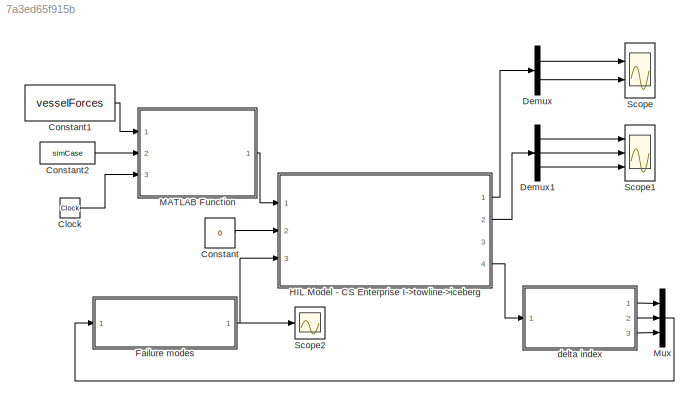
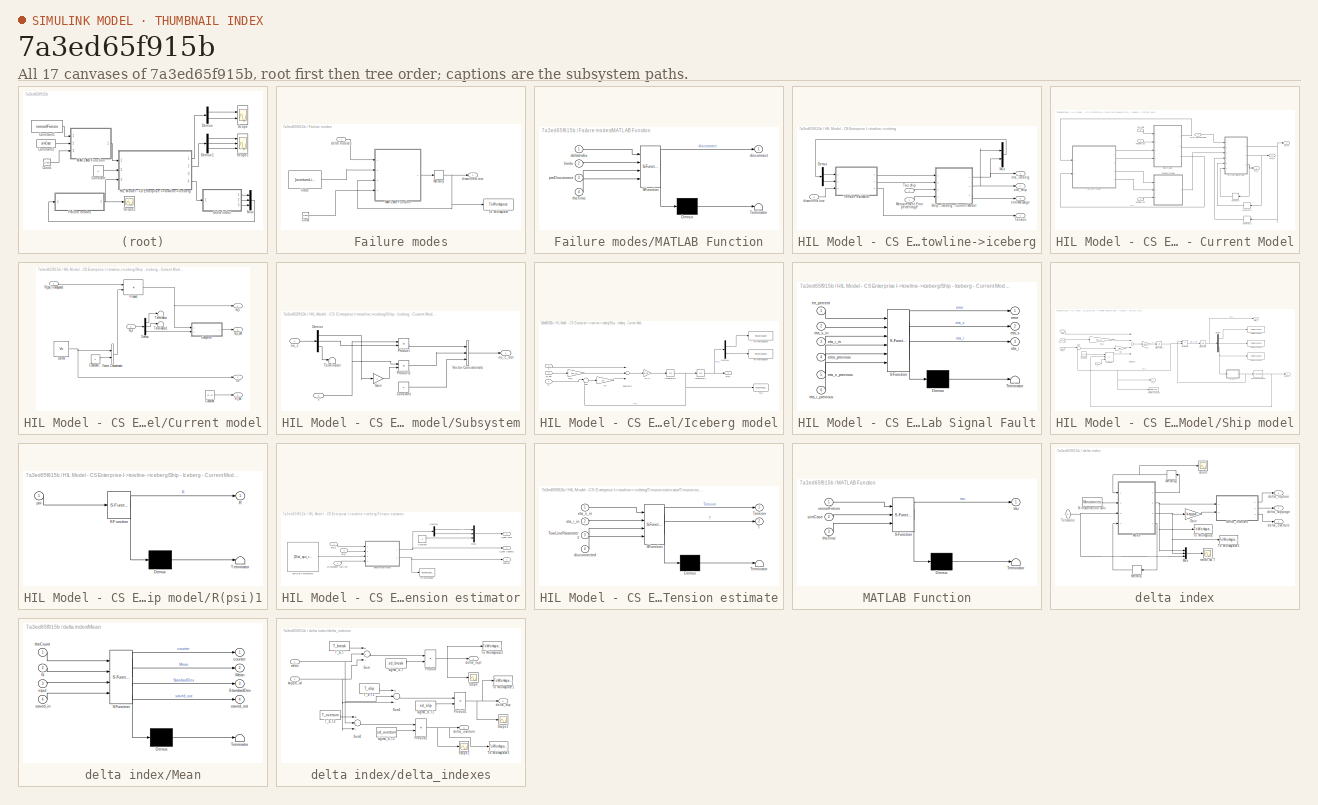
[diagram: thumbnail index - all 17 canvases of the model, root first then tree order]
MODEL slx_7a3ed65f915b
KIND model
BLOCK [Clock] Clock
BLOCK [Constant] Constant
  Value = 0
BLOCK [Constant] Constant1
  Value = vesselForces
  VectorParams1D = off
BLOCK [Constant] Constant2
  Value = simCase
BLOCK [Demux] Demux
  DisplayOption = bar
  Outputs = 2
  Ports = [1, 2]
BLOCK [Demux] Demux1
  DisplayOption = bar
  Outputs = 3
  Ports = [1, 3]
BLOCK [SubSystem] Failure modes
  FunctionWithSeparateData = off
  MaskHideContents = off
  MinAlgLoopOccurrences = off
  Opaque = off
  Ports = [1, 1]
  PropExecContextOutsideSubsystem = off
  RTWSystemCode = Auto
  RequestExecContextInheritance = off
BLOCK [Clock] Failure modes/Clock
BLOCK [SubSystem] Failure modes/MATLAB Function
  ErrorFcn = Stateflow.Translate.translate
  FunctionWithSeparateData = off
  MaskHideContents = off
  MinAlgLoopOccurrences = off
  Opaque = off
  PermitHierarchicalResolution = ExplicitOnly
  Ports = [4, 1]
  PropExecContextOutsideSubsystem = off
  RTWSystemCode = Auto
  RequestExecContextInheritance = off
  SFBlockType = MATLAB Function
  TreatAsAtomicUnit = on
BLOCK [Demux] Failure modes/MATLAB Function/ Demux 
  Outputs = 1
  Ports = [1, 1]
BLOCK [S-Function] Failure modes/MATLAB Function/ SFunction 
  EnableBusSupport = on
  FunctionName = sf_sfun
  PortCounts = [4 2]
  Ports = [4, 2]
  Tag = Stateflow S-Function HIL_model_experiments1 5
BLOCK [Terminator] Failure modes/MATLAB Function/ Terminator 
BLOCK [Inport] Failure modes/MATLAB Function/deltaIndex
  IconDisplay = Port number
BLOCK [Outport] Failure modes/MATLAB Function/disconnect
  IconDisplay = Port number
BLOCK [Inport] Failure modes/MATLAB Function/limits
  IconDisplay = Port number
  Port = 2
BLOCK [Inport] Failure modes/MATLAB Function/preDisconnect
  IconDisplay = Port number
  Port = 3
BLOCK [Inport] Failure modes/MATLAB Function/theTime
  IconDisplay = Port number
  Port = 4
BLOCK [Memory] Failure modes/Memory
BLOCK [ToWorkspace] Failure modes/To Workspace
  MaxDataPoints = inf
  Ports = [1]
  SampleTime = -1
  SaveFormat = Timeseries
  VariableName = isDisconnected
BLOCK [Inport] Failure modes/delta Indexes
  IconDisplay = Port number
BLOCK [Outport] Failure modes/disconnect tow
  IconDisplay = Port number
BLOCK [Constant] Failure modes/limits
  Value = [overturnLimit; ruptureLimit; slippageLimit]
  VectorParams1D = off
BLOCK [SubSystem] HIL Model - CS Enterprise I->towline->iceberg
  FunctionWithSeparateData = off
  MaskHideContents = off
  MinAlgLoopOccurrences = off
  Opaque = off
  Ports = [3, 4]
  PropExecContextOutsideSubsystem = off
  RTWSystemCode = Auto
  RequestExecContextInheritance = off
  VariantControl = Variant1
BLOCK [Demux] HIL Model - CS Enterprise I->towline->iceberg/Demux
  DisplayOption = bar
  Outputs = 2
  Ports = [1, 2]
BLOCK [Inport] HIL Model - CS Enterprise I->towline->iceberg/Measurement Error percentage
  IconDisplay = Port number
  Port = 2
BLOCK [Mux] HIL Model - CS Enterprise I->towline->iceberg/Mux
  DisplayOption = bar
  Inputs = [3; 2]
  Ports = [2, 1]
BLOCK [SubSystem] HIL Model - CS Enterprise I->towline->iceberg/Ship - Iceberg - Current Model
  FunctionWithSeparateData = off
  MaskHideContents = off
  MinAlgLoopOccurrences = off
  Opaque = off
  Ports = [4, 3]
  PropExecContextOutsideSubsystem = off
  RTWSystemCode = Auto
  RequestExecContextInheritance = off
BLOCK [SubSystem] HIL Model - CS Enterprise I->towline->iceberg/Ship - Iceberg - Current Model/Current model
  FunctionWithSeparateData = off
  MaskHideContents = off
  MinAlgLoopOccurrences = off
  Opaque = off
  Ports = [2, 4]
  PropExecContextOutsideSubsystem = off
  RTWSystemCode = Auto
  RequestExecContextInheritance = off
BLOCK [Constant] HIL Model - CS Enterprise I->towline->iceberg/Ship - Iceberg - Current Model/Current model/Constant
  Value = [0; 0]
  VectorParams1D = off
BLOCK [Constant] HIL Model - CS Enterprise I->towline->iceberg/Ship - Iceberg - Current Model/Current model/Constant1
  Value = 0
BLOCK [Demux] HIL Model - CS Enterprise I->towline->iceberg/Ship - Iceberg - Current Model/Current model/Demux
  DisplayOption = bar
  Outputs = 3
  Ports = [1, 3]
BLOCK [Product] HIL Model - CS Enterprise I->towline->iceberg/Ship - Iceberg - Current Model/Current model/Product
  InputSameDT = off
  Multiplication = Matrix(*)
  OutDataTypeStr = Inherit: Inherit via internal rule
  Ports = [2, 1]
  RndMeth = Floor
  SaturateOnIntegerOverflow = off
BLOCK [Inport] HIL Model - CS Enterprise I->towline->iceberg/Ship - Iceberg - Current Model/Current model/R(psi) transposed
  IconDisplay = Port number
BLOCK [SubSystem] HIL Model - CS Enterprise I->towline->iceberg/Ship - Iceberg - Current Model/Current model/Subsystem
  FunctionWithSeparateData = off
  MaskHideContents = off
  MinAlgLoopOccurrences = off
  Opaque = off
  Ports = [2, 1]
  PropExecContextOutsideSubsystem = off
  RTWSystemCode = Auto
  RequestExecContextInheritance = off
BLOCK [Constant] HIL Model - CS Enterprise I->towline->iceberg/Ship - Iceberg - Current Model/Current model/Subsystem/Constant
  Value = 0
BLOCK [Demux] HIL Model - CS Enterprise I->towline->iceberg/Ship - Iceberg - Current Model/Current model/Subsystem/Demux
  DisplayOption = bar
  Outputs = 3
  Ports = [1, 3]
BLOCK [Gain] HIL Model - CS Enterprise I->towline->iceberg/Ship - Iceberg - Current Model/Current model/Subsystem/Gain
  Gain = -1
  OutDataTypeStr = Inherit: Inherit via internal rule
  ParamDataTypeStr = Inherit: Inherit via internal rule
  SaturateOnIntegerOverflow = off
BLOCK [Product] HIL Model - CS Enterprise I->towline->iceberg/Ship - Iceberg - Current Model/Current model/Subsystem/Product
  InputSameDT = off
  OutDataTypeStr = Inherit: Inherit via internal rule
  Ports = [2, 1]
  RndMeth = Floor
  SaturateOnIntegerOverflow = off
BLOCK [Product] HIL Model - CS Enterprise I->towline->iceberg/Ship - Iceberg - Current Model/Current model/Subsystem/Product1
  InputSameDT = off
  OutDataTypeStr = Inherit: Inherit via internal rule
  Ports = [2, 1]
  RndMeth = Floor
  SaturateOnIntegerOverflow = off
BLOCK [Terminator] HIL Model - CS Enterprise I->towline->iceberg/Ship - Iceberg - Current Model/Current model/Subsystem/Terminator
BLOCK [Concatenate] HIL Model - CS Enterprise I->towline->iceberg/Ship - Iceberg - Current Model/Current model/Subsystem/Vector Concatenate
  Mode = Multidimensional array
  NumInputs = 3
  Ports = [3, 1]
BLOCK [Inport] HIL Model - CS Enterprise I->towline->iceberg/Ship - Iceberg - Current Model/Current model/Subsystem/nu_c
  IconDisplay = Port number
BLOCK [Outport] HIL Model - CS Enterprise I->towline->iceberg/Ship - Iceberg - Current Model/Current model/Subsystem/nu_c_dot
  IconDisplay = Port number
BLOCK [Inport] HIL Model - CS Enterprise I->towline->iceberg/Ship - Iceberg - Current Model/Current model/Subsystem/r
  IconDisplay = Port number
  Port = 2
BLOCK [Terminator] HIL Model - CS Enterprise I->towline->iceberg/Ship - Iceberg - Current Model/Current model/Terminator
BLOCK [Terminator] HIL Model - CS Enterprise I->towline->iceberg/Ship - Iceberg - Current Model/Current model/Terminator1
BLOCK [Outport] HIL Model - CS Enterprise I->towline->iceberg/Ship - Iceberg - Current Model/Current model/Vc
  IconDisplay = Port number
  Port = 3
BLOCK [Outport] HIL Model - CS Enterprise I->towline->iceberg/Ship - Iceberg - Current Model/Current model/Vc_dot
  IconDisplay = Port number
  Port = 4
BLOCK [Concatenate] HIL Model - CS Enterprise I->towline->iceberg/Ship - Iceberg - Current Model/Current model/Vector Concatenate
  Mode = Multidimensional array
  Ports = [2, 1]
BLOCK [Constant] HIL Model - CS Enterprise I->towline->iceberg/Ship - Iceberg - Current Model/Current model/current
  Value = Vc
  VectorParams1D = off
BLOCK [Outport] HIL Model - CS Enterprise I->towline->iceberg/Ship - Iceberg - Current Model/Current model/nu_c
  IconDisplay = Port number
BLOCK [Outport] HIL Model - CS Enterprise I->towline->iceberg/Ship - Iceberg - Current Model/Current model/nu_c_dot
  IconDisplay = Port number
  Port = 2
BLOCK [Inport] HIL Model - CS Enterprise I->towline->iceberg/Ship - Iceberg - Current Model/Current model/nu_s
  IconDisplay = Port number
  Port = 2
BLOCK [SubSystem] HIL Model - CS Enterprise I->towline->iceberg/Ship - Iceberg - Current Model/Iceberg model
  FunctionWithSeparateData = off
  MaskHideContents = off
  MinAlgLoopOccurrences = off
  Opaque = off
  Ports = [3, 1]
  PropExecContextOutsideSubsystem = off
  RTWSystemCode = Auto
  RequestExecContextInheritance = off
BLOCK [Demux] HIL Model - CS Enterprise I->towline->iceberg/Ship - Iceberg - Current Model/Iceberg model/Demux1
  DisplayOption = bar
  Outputs = 2
  Ports = [1, 2]
BLOCK [Gain] HIL Model - CS Enterprise I->towline->iceberg/Ship - Iceberg - Current Model/Iceberg model/Di
  Gain = Di
  Multiplication = Matrix(K*u) (u vector)
  OutDataTypeStr = Inherit: Inherit via internal rule
  ParamDataTypeStr = Inherit: Inherit via internal rule
  SaturateOnIntegerOverflow = off
BLOCK [Integrator] HIL Model - CS Enterprise I->towline->iceberg/Ship - Iceberg - Current Model/Iceberg model/Integrator1
  InitialCondition = Piceberg
  Ports = [1, 1]
BLOCK [Integrator] HIL Model - CS Enterprise I->towline->iceberg/Ship - Iceberg - Current Model/Iceberg model/Integrator3
  InitialCondition = [0;0]
  Ports = [1, 1]
BLOCK [Gain] HIL Model - CS Enterprise I->towline->iceberg/Ship - Iceberg - Current Model/Iceberg model/M-1 i
  Gain = inv(Mi_rb + Mi_a)
  Multiplication = Matrix(K*u)
  OutDataTypeStr = Inherit: Inherit via internal rule
  ParamDataTypeStr = Inherit: Inherit via internal rule
  SaturateOnIntegerOverflow = off
BLOCK [Gain] HIL Model - CS Enterprise I->towline->iceberg/Ship - Iceberg - Current Model/Iceberg model/Mi_a
  Gain = Mi_a
  Multiplication = Matrix(K*u) (u vector)
  OutDataTypeStr = Inherit: Inherit via internal rule
  ParamDataTypeStr = Inherit: Inherit via internal rule
  SaturateOnIntegerOverflow = off
BLOCK [Sum] HIL Model - CS Enterprise I->towline->iceberg/Ship - Iceberg - Current Model/Iceberg model/Subtract1
  InputSameDT = off
  Inputs = ++-
  OutDataTypeStr = Inherit: Inherit via internal rule
  Ports = [3, 1]
  SaturateOnIntegerOverflow = off
BLOCK [Sum] HIL Model - CS Enterprise I->towline->iceberg/Ship - Iceberg - Current Model/Iceberg model/Sum
  IconShape = round
  InputSameDT = off
  Inputs = |-+
  OutDataTypeStr = Inherit: Inherit via internal rule
  Ports = [2, 1]
  SaturateOnIntegerOverflow = off
BLOCK [Inport] HIL Model - CS Enterprise I->towline->iceberg/Ship - Iceberg - Current Model/Iceberg model/T
  IconDisplay = Port number
  Port = 3
BLOCK [ToWorkspace] HIL Model - CS Enterprise I->towline->iceberg/Ship - Iceberg - Current Model/Iceberg model/To Workspace3
  MaxDataPoints = inf
  Ports = [1]
  SampleTime = -1
  SaveFormat = Timeseries
  VariableName = x_i
BLOCK [ToWorkspace] HIL Model - CS Enterprise I->towline->iceberg/Ship - Iceberg - Current Model/Iceberg model/To Workspace4
  MaxDataPoints = inf
  Ports = [1]
  SampleTime = -1
  SaveFormat = Timeseries
  VariableName = y_i
BLOCK [Inport] HIL Model - CS Enterprise I->towline->iceberg/Ship - Iceberg - Current Model/Iceberg model/Vc
  IconDisplay = Port number
BLOCK [Inport] HIL Model - CS Enterprise I->towline->iceberg/Ship - Iceberg - Current Model/Iceberg model/Vc_dot
  IconDisplay = Port number
  Port = 2
BLOCK [Outport] HIL Model - CS Enterprise I->towline->iceberg/Ship - Iceberg - Current Model/Iceberg model/eta_i
  IconDisplay = Port number
BLOCK [ToWorkspace] HIL Model - CS Enterprise I->towline->iceberg/Ship - Iceberg - Current Model/Iceberg model/nu_i
  MaxDataPoints = inf
  Ports = [1]
  SampleTime = -1
  SaveFormat = Timeseries
  VariableName = nu_i
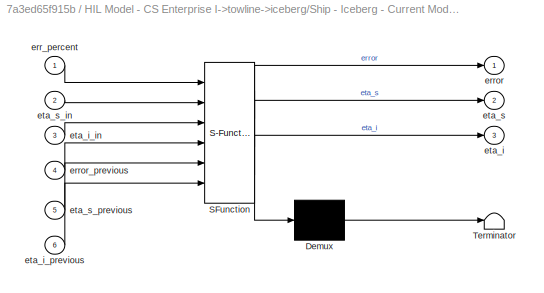
BLOCK [SubSystem] HIL Model - CS Enterprise I->towline->iceberg/Ship - Iceberg - Current Model/MC Lab Signal Fault
  ErrorFcn = Stateflow.Translate.translate
  FunctionWithSeparateData = off
  MaskHideContents = off
  MinAlgLoopOccurrences = off
  Opaque = off
  PermitHierarchicalResolution = ExplicitOnly
  Ports = [6, 3]
  PropExecContextOutsideSubsystem = off
  RTWSystemCode = Auto
  RequestExecContextInheritance = off
  SFBlockType = MATLAB Function
  TreatAsAtomicUnit = on
BLOCK [Demux] HIL Model - CS Enterprise I->towline->iceberg/Ship - Iceberg - Current Model/MC Lab Signal Fault/ Demux 
  Outputs = 1
  Ports = [1, 1]
BLOCK [S-Function] HIL Model - CS Enterprise I->towline->iceberg/Ship - Iceberg - Current Model/MC Lab Signal Fault/ SFunction 
  EnableBusSupport = on
  FunctionName = sf_sfun
  PortCounts = [6 4]
  Ports = [6, 4]
  Tag = Stateflow S-Function HIL_model_experiments1 1
BLOCK [Terminator] HIL Model - CS Enterprise I->towline->iceberg/Ship - Iceberg - Current Model/MC Lab Signal Fault/ Terminator 
BLOCK [Inport] HIL Model - CS Enterprise I->towline->iceberg/Ship - Iceberg - Current Model/MC Lab Signal Fault/err_percent
  IconDisplay = Port number
BLOCK [Outport] HIL Model - CS Enterprise I->towline->iceberg/Ship - Iceberg - Current Model/MC Lab Signal Fault/error
  IconDisplay = Port number
BLOCK [Inport] HIL Model - CS Enterprise I->towline->iceberg/Ship - Iceberg - Current Model/MC Lab Signal Fault/error_previous
  IconDisplay = Port number
  Port = 4
BLOCK [Outport] HIL Model - CS Enterprise I->towline->iceberg/Ship - Iceberg - Current Model/MC Lab Signal Fault/eta_i
  IconDisplay = Port number
  Port = 3
BLOCK [Inport] HIL Model - CS Enterprise I->towline->iceberg/Ship - Iceberg - Current Model/MC Lab Signal Fault/eta_i_in
  IconDisplay = Port number
  Port = 3
BLOCK [Inport] HIL Model - CS Enterprise I->towline->iceberg/Ship - Iceberg - Current Model/MC Lab Signal Fault/eta_i_previous
  IconDisplay = Port number
  Port = 6
BLOCK [Outport] HIL Model - CS Enterprise I->towline->iceberg/Ship - Iceberg - Current Model/MC Lab Signal Fault/eta_s
  IconDisplay = Port number
  Port = 2
BLOCK [Inport] HIL Model - CS Enterprise I->towline->iceberg/Ship - Iceberg - Current Model/MC Lab Signal Fault/eta_s_in
  IconDisplay = Port number
  Port = 2
BLOCK [Inport] HIL Model - CS Enterprise I->towline->iceberg/Ship - Iceberg - Current Model/MC Lab Signal Fault/eta_s_previous
  IconDisplay = Port number
  Port = 5
BLOCK [Memory] HIL Model - CS Enterprise I->towline->iceberg/Ship - Iceberg - Current Model/Memory
  X0 = [0; 0]
BLOCK [Memory] HIL Model - CS Enterprise I->towline->iceberg/Ship - Iceberg - Current Model/Memory1
  X0 = [0; 0; 0]
BLOCK [Memory] HIL Model - CS Enterprise I->towline->iceberg/Ship - Iceberg - Current Model/Memory2
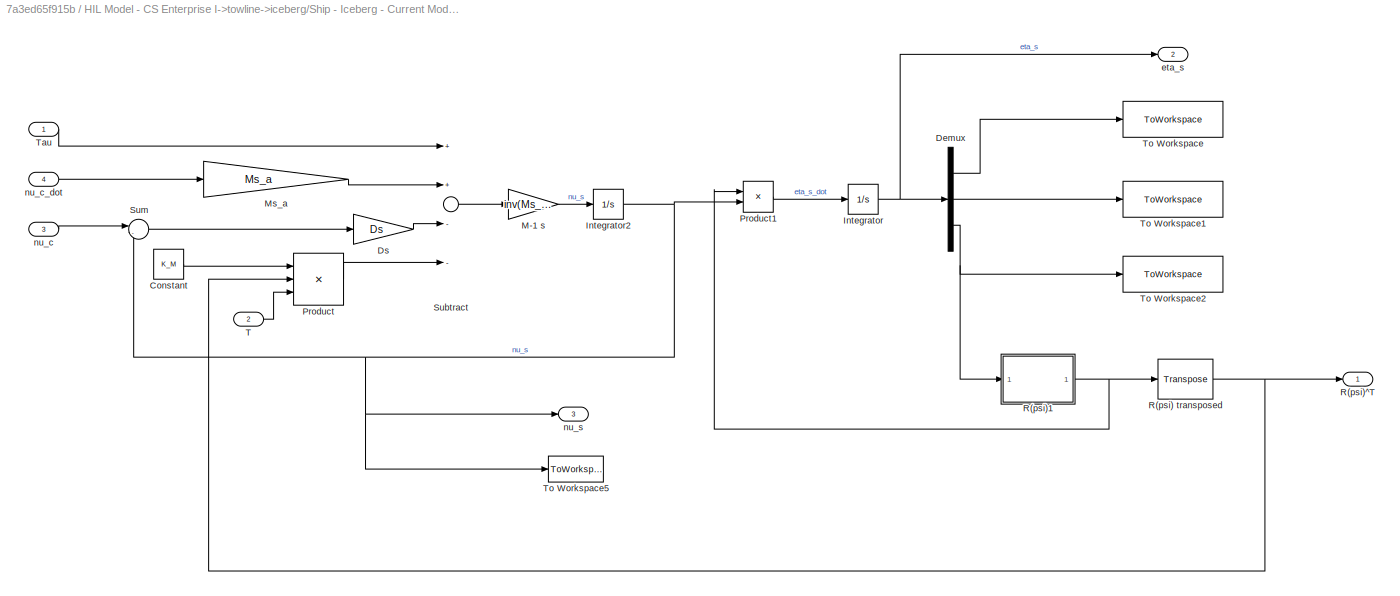
BLOCK [SubSystem] HIL Model - CS Enterprise I->towline->iceberg/Ship - Iceberg - Current Model/Ship model
  FunctionWithSeparateData = off
  MaskHideContents = off
  MinAlgLoopOccurrences = off
  Opaque = off
  Ports = [4, 3]
  PropExecContextOutsideSubsystem = off
  RTWSystemCode = Auto
  RequestExecContextInheritance = off
BLOCK [Constant] HIL Model - CS Enterprise I->towline->iceberg/Ship - Iceberg - Current Model/Ship model/Constant
  Value = K_M
  VectorParams1D = off
BLOCK [Demux] HIL Model - CS Enterprise I->towline->iceberg/Ship - Iceberg - Current Model/Ship model/Demux
  DisplayOption = bar
  Outputs = 3
  Ports = [1, 3]
BLOCK [Gain] HIL Model - CS Enterprise I->towline->iceberg/Ship - Iceberg - Current Model/Ship model/Ds
  Gain = Ds
  Multiplication = Matrix(K*u) (u vector)
  OutDataTypeStr = Inherit: Inherit via internal rule
  ParamDataTypeStr = Inherit: Inherit via internal rule
  SaturateOnIntegerOverflow = off
BLOCK [Integrator] HIL Model - CS Enterprise I->towline->iceberg/Ship - Iceberg - Current Model/Ship model/Integrator
  InitialCondition = Pship
  Ports = [1, 1]
BLOCK [Integrator] HIL Model - CS Enterprise I->towline->iceberg/Ship - Iceberg - Current Model/Ship model/Integrator2
  InitialCondition = [0; 0; 0]
  Ports = [1, 1]
BLOCK [Gain] HIL Model - CS Enterprise I->towline->iceberg/Ship - Iceberg - Current Model/Ship model/M-1 s
  Gain = inv(Ms_rb + Ms_a)
  Multiplication = Matrix(K*u) (u vector)
  OutDataTypeStr = Inherit: Inherit via internal rule
  ParamDataTypeStr = Inherit: Inherit via internal rule
  SaturateOnIntegerOverflow = off
BLOCK [Gain] HIL Model - CS Enterprise I->towline->iceberg/Ship - Iceberg - Current Model/Ship model/Ms_a
  Gain = Ms_a
  Multiplication = Matrix(K*u) (u vector)
  OutDataTypeStr = Inherit: Inherit via internal rule
  ParamDataTypeStr = Inherit: Inherit via internal rule
  SaturateOnIntegerOverflow = off
BLOCK [Product] HIL Model - CS Enterprise I->towline->iceberg/Ship - Iceberg - Current Model/Ship model/Product
  InputSameDT = off
  Inputs = ***
  Multiplication = Matrix(*)
  OutDataTypeStr = Inherit: Inherit via internal rule
  Ports = [3, 1]
  RndMeth = Floor
  SaturateOnIntegerOverflow = off
BLOCK [Product] HIL Model - CS Enterprise I->towline->iceberg/Ship - Iceberg - Current Model/Ship model/Product1
  InputSameDT = off
  Multiplication = Matrix(*)
  OutDataTypeStr = Inherit: Inherit via internal rule
  Ports = [2, 1]
  RndMeth = Floor
  SaturateOnIntegerOverflow = off
BLOCK [Reference] HIL Model - CS Enterprise I->towline->iceberg/Ship - Iceberg - Current Model/Ship model/R(psi) transposed  REF=dspmtrx3/Transpose
  Hermitian = off
  Ports = [1, 1]
  SourceBlock = dspmtrx3/Transpose
  SourceType = Transpose
  overflowFlag = off
BLOCK [SubSystem] HIL Model - CS Enterprise I->towline->iceberg/Ship - Iceberg - Current Model/Ship model/R(psi)1
  ErrorFcn = Stateflow.Translate.translate
  FunctionWithSeparateData = off
  MaskHideContents = off
  MinAlgLoopOccurrences = off
  Opaque = off
  PermitHierarchicalResolution = ExplicitOnly
  Ports = [1, 1]
  PropExecContextOutsideSubsystem = off
  RTWSystemCode = Auto
  RequestExecContextInheritance = off
  SFBlockType = MATLAB Function
  TreatAsAtomicUnit = on
BLOCK [Demux] HIL Model - CS Enterprise I->towline->iceberg/Ship - Iceberg - Current Model/Ship model/R(psi)1/ Demux 
  Outputs = 1
  Ports = [1, 1]
BLOCK [S-Function] HIL Model - CS Enterprise I->towline->iceberg/Ship - Iceberg - Current Model/Ship model/R(psi)1/ SFunction 
  EnableBusSupport = on
  FunctionName = sf_sfun
  PortCounts = [1 2]
  Ports = [1, 2]
  Tag = Stateflow S-Function HIL_model_experiments1 2
BLOCK [Terminator] HIL Model - CS Enterprise I->towline->iceberg/Ship - Iceberg - Current Model/Ship model/R(psi)1/ Terminator 
BLOCK [Outport] HIL Model - CS Enterprise I->towline->iceberg/Ship - Iceberg - Current Model/Ship model/R(psi)1/R
  IconDisplay = Port number
BLOCK [Inport] HIL Model - CS Enterprise I->towline->iceberg/Ship - Iceberg - Current Model/Ship model/R(psi)1/psi
  IconDisplay = Port number
BLOCK [Outport] HIL Model - CS Enterprise I->towline->iceberg/Ship - Iceberg - Current Model/Ship model/R(psi)^T
  IconDisplay = Port number
BLOCK [Sum] HIL Model - CS Enterprise I->towline->iceberg/Ship - Iceberg - Current Model/Ship model/Subtract
  InputSameDT = off
  Inputs = ++--
  OutDataTypeStr = Inherit: Inherit via internal rule
  Ports = [4, 1]
  SaturateOnIntegerOverflow = off
BLOCK [Sum] HIL Model - CS Enterprise I->towline->iceberg/Ship - Iceberg - Current Model/Ship model/Sum
  IconShape = round
  InputSameDT = off
  Inputs = |-+
  OutDataTypeStr = Inherit: Inherit via internal rule
  Ports = [2, 1]
  SaturateOnIntegerOverflow = off
BLOCK [Inport] HIL Model - CS Enterprise I->towline->iceberg/Ship - Iceberg - Current Model/Ship model/T
  IconDisplay = Port number
  Port = 2
BLOCK [Inport] HIL Model - CS Enterprise I->towline->iceberg/Ship - Iceberg - Current Model/Ship model/Tau
  IconDisplay = Port number
BLOCK [ToWorkspace] HIL Model - CS Enterprise I->towline->iceberg/Ship - Iceberg - Current Model/Ship model/To Workspace
  MaxDataPoints = inf
  Ports = [1]
  SampleTime = -1
  SaveFormat = Timeseries
  VariableName = x_s
BLOCK [ToWorkspace] HIL Model - CS Enterprise I->towline->iceberg/Ship - Iceberg - Current Model/Ship model/To Workspace1
  MaxDataPoints = inf
  Ports = [1]
  SampleTime = -1
  SaveFormat = Timeseries
  VariableName = y_s
BLOCK [ToWorkspace] HIL Model - CS Enterprise I->towline->iceberg/Ship - Iceberg - Current Model/Ship model/To Workspace2
  MaxDataPoints = inf
  Ports = [1]
  SampleTime = -1
  SaveFormat = Timeseries
  VariableName = psi_s
BLOCK [ToWorkspace] HIL Model - CS Enterprise I->towline->iceberg/Ship - Iceberg - Current Model/Ship model/To Workspace5
  MaxDataPoints = inf
  Ports = [1]
  SampleTime = -1
  SaveFormat = Timeseries
  VariableName = nu_s
BLOCK [Outport] HIL Model - CS Enterprise I->towline->iceberg/Ship - Iceberg - Current Model/Ship model/eta_s
  IconDisplay = Port number
  Port = 2
BLOCK [Inport] HIL Model - CS Enterprise I->towline->iceberg/Ship - Iceberg - Current Model/Ship model/nu_c
  IconDisplay = Port number
  Port = 3
BLOCK [Inport] HIL Model - CS Enterprise I->towline->iceberg/Ship - Iceberg - Current Model/Ship model/nu_c_dot
  IconDisplay = Port number
  Port = 4
BLOCK [Outport] HIL Model - CS Enterprise I->towline->iceberg/Ship - Iceberg - Current Model/Ship model/nu_s
  IconDisplay = Port number
  Port = 3
BLOCK [Inport] HIL Model - CS Enterprise I->towline->iceberg/Ship - Iceberg - Current Model/Tension 2D
  IconDisplay = Port number
  Port = 2
BLOCK [Inport] HIL Model - CS Enterprise I->towline->iceberg/Ship - Iceberg - Current Model/Tension 3D
  IconDisplay = Port number
BLOCK [Outport] HIL Model - CS Enterprise I->towline->iceberg/Ship - Iceberg - Current Model/error
  IconDisplay = Port number
  Port = 3
BLOCK [Inport] HIL Model - CS Enterprise I->towline->iceberg/Ship - Iceberg - Current Model/error percentage
  IconDisplay = Port number
  Port = 4
BLOCK [Outport] HIL Model - CS Enterprise I->towline->iceberg/Ship - Iceberg - Current Model/eta_i
  IconDisplay = Port number
BLOCK [Outport] HIL Model - CS Enterprise I->towline->iceberg/Ship - Iceberg - Current Model/eta_s
  IconDisplay = Port number
  Port = 2
BLOCK [Inport] HIL Model - CS Enterprise I->towline->iceberg/Ship - Iceberg - Current Model/tau ship
  IconDisplay = Port number
  Port = 3
BLOCK [Inport] HIL Model - CS Enterprise I->towline->iceberg/Tau ship
  IconDisplay = Port number
BLOCK [Outport] HIL Model - CS Enterprise I->towline->iceberg/Tension
  IconDisplay = Port number
  Port = 4
BLOCK [SubSystem] HIL Model - CS Enterprise I->towline->iceberg/Tension estimator
  FunctionWithSeparateData = off
  MaskHideContents = off
  MinAlgLoopOccurrences = off
  Opaque = off
  Ports = [3, 3]
  PropExecContextOutsideSubsystem = off
  RTWSystemCode = Auto
  RequestExecContextInheritance = off
BLOCK [Constant] HIL Model - CS Enterprise I->towline->iceberg/Tension estimator/Constant
  Value = 0
BLOCK [Demux] HIL Model - CS Enterprise I->towline->iceberg/Tension estimator/Demux1
  DisplayOption = bar
  Outputs = 2
  Ports = [1, 2]
BLOCK [Inport] HIL Model - CS Enterprise I->towline->iceberg/Tension estimator/Disconnect towline
  IconDisplay = Port number
  Port = 3
BLOCK [Mux] HIL Model - CS Enterprise I->towline->iceberg/Tension estimator/Mux1
  DisplayOption = bar
  Inputs = 3
  Ports = [3, 1]
BLOCK [Outport] HIL Model - CS Enterprise I->towline->iceberg/Tension estimator/T_2dof iceberg
  IconDisplay = Port number
  Port = 2
BLOCK [Outport] HIL Model - CS Enterprise I->towline->iceberg/Tension estimator/T_3dof ship
  IconDisplay = Port number
BLOCK [Outport] HIL Model - CS Enterprise I->towline->iceberg/Tension estimator/Tension
  IconDisplay = Port number
  Port = 3
BLOCK [SubSystem] HIL Model - CS Enterprise I->towline->iceberg/Tension estimator/Tension estimate
  ErrorFcn = Stateflow.Translate.translate
  FunctionWithSeparateData = off
  MaskHideContents = off
  MinAlgLoopOccurrences = off
  Opaque = off
  PermitHierarchicalResolution = ExplicitOnly
  Ports = [4, 2]
  PropExecContextOutsideSubsystem = off
  RTWSystemCode = Auto
  RequestExecContextInheritance = off
  SFBlockType = MATLAB Function
  TreatAsAtomicUnit = on
BLOCK [Demux] HIL Model - CS Enterprise I->towline->iceberg/Tension estimator/Tension estimate/ Demux 
  Outputs = 1
  Ports = [1, 1]
BLOCK [S-Function] HIL Model - CS Enterprise I->towline->iceberg/Tension estimator/Tension estimate/ SFunction 
  EnableBusSupport = on
  FunctionName = sf_sfun
  PortCounts = [4 3]
  Ports = [4, 3]
  Tag = Stateflow S-Function HIL_model_experiments1 4
BLOCK [Terminator] HIL Model - CS Enterprise I->towline->iceberg/Tension estimator/Tension estimate/ Terminator 
BLOCK [Outport] HIL Model - CS Enterprise I->towline->iceberg/Tension estimator/Tension estimate/T
  IconDisplay = Port number
  Port = 2
BLOCK [Outport] HIL Model - CS Enterprise I->towline->iceberg/Tension estimator/Tension estimate/Tension
  IconDisplay = Port number
BLOCK [Inport] HIL Model - CS Enterprise I->towline->iceberg/Tension estimator/Tension estimate/TowLineParameters
  IconDisplay = Port number
  Port = 3
BLOCK [Inport] HIL Model - CS Enterprise I->towline->iceberg/Tension estimator/Tension estimate/disconnected
  IconDisplay = Port number
  Port = 4
BLOCK [Inport] HIL Model - CS Enterprise I->towline->iceberg/Tension estimator/Tension estimate/eta_i_in
  IconDisplay = Port number
  Port = 2
BLOCK [Inport] HIL Model - CS Enterprise I->towline->iceberg/Tension estimator/Tension estimate/eta_s_in
  IconDisplay = Port number
BLOCK [ToWorkspace] HIL Model - CS Enterprise I->towline->iceberg/Tension estimator/To Workspace
  MaxDataPoints = inf
  Ports = [1]
  SampleTime = -1
  SaveFormat = Timeseries
  VariableName = tension
BLOCK [Constant] HIL Model - CS Enterprise I->towline->iceberg/Tension estimator/TowLine Parameters
  Value = [Dist_spv_rfp; TowLineLength; K_tow]
  VectorParams1D = off
BLOCK [Inport] HIL Model - CS Enterprise I->towline->iceberg/Tension estimator/eta_i
  IconDisplay = Port number
  Port = 2
BLOCK [Inport] HIL Model - CS Enterprise I->towline->iceberg/Tension estimator/eta_s
  IconDisplay = Port number
BLOCK [Inport] HIL Model - CS Enterprise I->towline->iceberg/disconnect tow
  IconDisplay = Port number
  Port = 3
BLOCK [Outport] HIL Model - CS Enterprise I->towline->iceberg/errorMessage
  IconDisplay = Port number
  Port = 3
BLOCK [Outport] HIL Model - CS Enterprise I->towline->iceberg/eta_iceberg
  IconDisplay = Port number
BLOCK [Outport] HIL Model - CS Enterprise I->towline->iceberg/eta_ship
  IconDisplay = Port number
  Port = 2
BLOCK [SubSystem] MATLAB Function
  ErrorFcn = Stateflow.Translate.translate
  FunctionWithSeparateData = off
  MaskHideContents = off
  MinAlgLoopOccurrences = off
  Opaque = off
  PermitHierarchicalResolution = ExplicitOnly
  Ports = [3, 1]
  PropExecContextOutsideSubsystem = off
  RTWSystemCode = Auto
  RequestExecContextInheritance = off
  SFBlockType = MATLAB Function
  TreatAsAtomicUnit = on
BLOCK [Demux] MATLAB Function/ Demux 
  Outputs = 1
  Ports = [1, 1]
BLOCK [S-Function] MATLAB Function/ SFunction 
  EnableBusSupport = on
  FunctionName = sf_sfun
  PortCounts = [3 2]
  Ports = [3, 2]
  Tag = Stateflow S-Function HIL_model_experiments1 6
BLOCK [Terminator] MATLAB Function/ Terminator 
BLOCK [Inport] MATLAB Function/simCase
  IconDisplay = Port number
  Port = 2
BLOCK [Outport] MATLAB Function/tau
  IconDisplay = Port number
BLOCK [Inport] MATLAB Function/theTime
  IconDisplay = Port number
  Port = 3
BLOCK [Inport] MATLAB Function/vesselForces
  IconDisplay = Port number
BLOCK [Mux] Mux
  DisplayOption = bar
  Inputs = 3
  Ports = [3, 1]
BLOCK [Scope] Scope
  DataFormat = StructureWithTime
  Floating = off
  NumInputPorts = 2
  Ports = [2]
  SampleTime = 0
  SaveName = ScopeData5
  ShowLegends = off
  YMax = 5~5
  YMin = -5~-5
BLOCK [Scope] Scope1
  DataFormat = StructureWithTime
  Floating = off
  NumInputPorts = 3
  Ports = [3]
  SampleTime = 0
  SaveName = ScopeData6
  ShowLegends = off
  YMax = 5~5~5
  YMin = -5~-5~-5
BLOCK [Scope] Scope2
  DataFormat = StructureWithTime
  Floating = off
  NumInputPorts = 1
  Ports = [1]
  SampleTime = 0
  SaveName = ScopeData7
  ShowLegends = off
BLOCK [SubSystem] delta index
  FunctionWithSeparateData = off
  MaskHideContents = off
  MinAlgLoopOccurrences = off
  Opaque = off
  Ports = [1, 3]
  PropExecContextOutsideSubsystem = off
  RTWSystemCode = Auto
  RequestExecContextInheritance = off
BLOCK [Gain] delta index/Gain
  Gain = kappa
  OutDataTypeStr = Inherit: Inherit via internal rule
  ParamDataTypeStr = Inherit: Inherit via internal rule
  SaturateOnIntegerOverflow = off
BLOCK [SubSystem] delta index/Mean
  ErrorFcn = Stateflow.Translate.translate
  FunctionWithSeparateData = off
  MaskHideContents = off
  MinAlgLoopOccurrences = off
  Opaque = off
  PermitHierarchicalResolution = ExplicitOnly
  Ports = [4, 4]
  PropExecContextOutsideSubsystem = off
  RTWSystemCode = Auto
  RequestExecContextInheritance = off
  SFBlockType = MATLAB Function
  TreatAsAtomicUnit = on
BLOCK [Demux] delta index/Mean/ Demux 
  Outputs = 1
  Ports = [1, 1]
BLOCK [S-Function] delta index/Mean/ SFunction 
  EnableBusSupport = on
  FunctionName = sf_sfun
  PortCounts = [4 5]
  Ports = [4, 5]
  Tag = Stateflow S-Function HIL_model_experiments1 3
BLOCK [Terminator] delta index/Mean/ Terminator 
BLOCK [Outport] delta index/Mean/Mean
  IconDisplay = Port number
  Port = 2
BLOCK [Inport] delta index/Mean/N
  IconDisplay = Port number
  Port = 2
BLOCK [Outport] delta index/Mean/StandardDev
  IconDisplay = Port number
  Port = 3
BLOCK [Outport] delta index/Mean/counter
  IconDisplay = Port number
BLOCK [Inport] delta index/Mean/input
  IconDisplay = Port number
  Port = 3
BLOCK [Inport] delta index/Mean/saved_in
  IconDisplay = Port number
  Port = 4
BLOCK [Outport] delta index/Mean/saved_out
  IconDisplay = Port number
  Port = 4
BLOCK [Inport] delta index/Mean/theCount
  IconDisplay = Port number
BLOCK [Memory] delta index/Memory
  X0 = saved_init
BLOCK [Memory] delta index/Memory1
  X0 = 1
BLOCK [Mux] delta index/Mux
  DisplayOption = bar
  Inputs = 3
  Ports = [3, 1]
BLOCK [Constant] delta index/N instances for calc
  Value = Ninstances
BLOCK [Inport] delta index/Tensions
  IconDisplay = Port number
BLOCK [ToWorkspace] delta index/To Workspace
  MaxDataPoints = inf
  Ports = [1]
  SampleTime = -1
  SaveFormat = Timeseries
  VariableName = meanT
BLOCK [ToWorkspace] delta index/To Workspace1
  MaxDataPoints = inf
  Ports = [1]
  SampleTime = -1
  SaveFormat = Timeseries
  VariableName = stanDevT
BLOCK [Scope] delta index/count
  DataFormat = StructureWithTime
  Floating = off
  NumInputPorts = 1
  Ports = [1]
  SampleTime = 0
  SaveName = ScopeData1
  ShowLegends = off
BLOCK [SubSystem] delta index/delta_indexes
  FunctionWithSeparateData = off
  MaskHideContents = off
  MinAlgLoopOccurrences = off
  Opaque = off
  Ports = [2, 3]
  PropExecContextOutsideSubsystem = off
  RTWSystemCode = Auto
  RequestExecContextInheritance = off
BLOCK [Product] delta index/delta_indexes/Product
  InputSameDT = off
  Inputs = */
  OutDataTypeStr = Inherit: Inherit via internal rule
  Ports = [2, 1]
  RndMeth = Floor
  SaturateOnIntegerOverflow = off
BLOCK [Product] delta index/delta_indexes/Product1
  InputSameDT = off
  Inputs = */
  OutDataTypeStr = Inherit: Inherit via internal rule
  Ports = [2, 1]
  RndMeth = Floor
  SaturateOnIntegerOverflow = off
BLOCK [Product] delta index/delta_indexes/Product2
  InputSameDT = off
  Inputs = */
  OutDataTypeStr = Inherit: Inherit via internal rule
  Ports = [2, 1]
  RndMeth = Floor
  SaturateOnIntegerOverflow = off
BLOCK [Scope] delta index/delta_indexes/Scope
  DataFormat = StructureWithTime
  Floating = off
  NumInputPorts = 1
  Ports = [1]
  SampleTime = 0
  ShowLegends = off
  ZoomMode = yonly
BLOCK [Scope] delta index/delta_indexes/Scope1
  DataFormat = StructureWithTime
  Floating = off
  NumInputPorts = 1
  Ports = [1]
  SampleTime = 0
  SaveName = ScopeData3
  ShowLegends = off
  ZoomMode = yonly
BLOCK [Scope] delta index/delta_indexes/Scope2
  DataFormat = StructureWithTime
  Floating = off
  NumInputPorts = 1
  Ports = [1]
  SampleTime = 0
  SaveName = ScopeData4
  ShowLegends = off
  ZoomMode = yonly
BLOCK [Sum] delta index/delta_indexes/Sum
  InputSameDT = off
  Inputs = +--
  OutDataTypeStr = Inherit: Inherit via internal rule
  Ports = [3, 1]
  SaturateOnIntegerOverflow = off
BLOCK [Sum] delta index/delta_indexes/Sum1
  InputSameDT = off
  Inputs = +--
  OutDataTypeStr = Inherit: Inherit via internal rule
  Ports = [3, 1]
  SaturateOnIntegerOverflow = off
BLOCK [Sum] delta index/delta_indexes/Sum2
  InputSameDT = off
  Inputs = +--
  OutDataTypeStr = Inherit: Inherit via internal rule
  Ports = [3, 1]
  SaturateOnIntegerOverflow = off
BLOCK [Constant] delta index/delta_indexes/T_b,T
  Value = T_break
BLOCK [Constant] delta index/delta_indexes/T_b,T1
  Value = T_slip
BLOCK [Constant] delta index/delta_indexes/T_b,T2
  Value = T_overturn
BLOCK [ToWorkspace] delta index/delta_indexes/To Workspace1
  MaxDataPoints = inf
  Ports = [1]
  SampleTime = -1
  SaveFormat = Timeseries
  VariableName = deltaSlippage
BLOCK [ToWorkspace] delta index/delta_indexes/To Workspace2
  MaxDataPoints = inf
  Ports = [1]
  SampleTime = -1
  SaveFormat = Timeseries
  VariableName = deltaRupture
BLOCK [ToWorkspace] delta index/delta_indexes/To Workspace3
  MaxDataPoints = inf
  Ports = [1]
  SampleTime = -1
  SaveFormat = Timeseries
  VariableName = deltaOverturn
BLOCK [Outport] delta index/delta_indexes/delta_overturn
  IconDisplay = Port number
  Port = 3
BLOCK [Outport] delta index/delta_indexes/delta_rupt
  IconDisplay = Port number
BLOCK [Outport] delta index/delta_indexes/delta_slip
  IconDisplay = Port number
  Port = 2
BLOCK [Inport] delta index/delta_indexes/kappa_sd
  IconDisplay = Port number
  Port = 2
BLOCK [Inport] delta index/delta_indexes/mean
  IconDisplay = Port number
BLOCK [Constant] delta index/delta_indexes/sigma_b,T
  Value = sd_break
BLOCK [Constant] delta index/delta_indexes/sigma_b,T1
  Value = sd_slip
BLOCK [Constant] delta index/delta_indexes/sigma_b,T2
  Value = sd_overturn
BLOCK [Outport] delta index/delta_overturn
  IconDisplay = Port number
  Port = 3
BLOCK [Outport] delta index/delta_rupture
  IconDisplay = Port number
BLOCK [Outport] delta index/delta_slippage
  IconDisplay = Port number
  Port = 2
BLOCK [Scope] delta index/mean,sd,T
  DataFormat = StructureWithTime
  Floating = off
  NumInputPorts = 1
  Ports = [1]
  SampleTime = 0
  SaveName = ScopeData2
  ShowLegends = off
  ZoomMode = xonly
LINE Clock:1 -> MATLAB Function:3
LINE Constant1:1 -> MATLAB Function:1
LINE Constant2:1 -> MATLAB Function:2
LINE Constant:1 -> HIL Model - CS Enterprise I->towline->iceberg:2
LINE Demux1:1 -> Scope1:1
LINE Demux1:2 -> Scope1:2
LINE Demux1:3 -> Scope1:3
LINE Demux:1 -> Scope:1
LINE Demux:2 -> Scope:2
LINE Failure modes/Clock:1 -> Failure modes/MATLAB Function:4
LINE Failure modes/MATLAB Function:1 -> Failure modes/Memory:1
NET Failure modes/Memory:1 -> Failure modes/MATLAB Function:3, Failure modes/To Workspace:1, Failure modes/disconnect tow:1
LINE Failure modes/delta Indexes:1 -> Failure modes/MATLAB Function:1
LINE Failure modes/limits:1 -> Failure modes/MATLAB Function:2
NET Failure modes:1 -> HIL Model - CS Enterprise I->towline->iceberg:3, Scope2:1
LINE HIL Model - CS Enterprise I->towline->iceberg/Demux:1 -> HIL Model - CS Enterprise I->towline->iceberg/Tension estimator:1
LINE HIL Model - CS Enterprise I->towline->iceberg/Demux:2 -> HIL Model - CS Enterprise I->towline->iceberg/Tension estimator:2
LINE HIL Model - CS Enterprise I->towline->iceberg/Measurement Error percentage:1 -> HIL Model - CS Enterprise I->towline->iceberg/Ship - Iceberg - Current Model:4
LINE HIL Model - CS Enterprise I->towline->iceberg/Mux:1 -> HIL Model - CS Enterprise I->towline->iceberg/Demux:1
LINE HIL Model - CS Enterprise I->towline->iceberg/Ship - Iceberg - Current Model/Current model/Constant1:1 -> HIL Model - CS Enterprise I->towline->iceberg/Ship - Iceberg - Current Model/Current model/Vector Concatenate:2
LINE HIL Model - CS Enterprise I->towline->iceberg/Ship - Iceberg - Current Model/Current model/Constant:1 -> HIL Model - CS Enterprise I->towline->iceberg/Ship - Iceberg - Current Model/Current model/Vc_dot:1
LINE HIL Model - CS Enterprise I->towline->iceberg/Ship - Iceberg - Current Model/Current model/Demux:1 -> HIL Model - CS Enterprise I->towline->iceberg/Ship - Iceberg - Current Model/Current model/Terminator:1
LINE HIL Model - CS Enterprise I->towline->iceberg/Ship - Iceberg - Current Model/Current model/Demux:2 -> HIL Model - CS Enterprise I->towline->iceberg/Ship - Iceberg - Current Model/Current model/Terminator1:1
LINE HIL Model - CS Enterprise I->towline->iceberg/Ship - Iceberg - Current Model/Current model/Demux:3 -> HIL Model - CS Enterprise I->towline->iceberg/Ship - Iceberg - Current Model/Current model/Subsystem:2
NET HIL Model - CS Enterprise I->towline->iceberg/Ship - Iceberg - Current Model/Current model/Product:1 -> HIL Model - CS Enterprise I->towline->iceberg/Ship - Iceberg - Current Model/Current model/Subsystem:1, HIL Model - CS Enterprise I->towline->iceberg/Ship - Iceberg - Current Model/Current model/nu_c:1
LINE HIL Model - CS Enterprise I->towline->iceberg/Ship - Iceberg - Current Model/Current model/R(psi) transposed:1 -> HIL Model - CS Enterprise I->towline->iceberg/Ship - Iceberg - Current Model/Current model/Product:1
LINE HIL Model - CS Enterprise I->towline->iceberg/Ship - Iceberg - Current Model/Current model/Subsystem/Constant:1 -> HIL Model - CS Enterprise I->towline->iceberg/Ship - Iceberg - Current Model/Current model/Subsystem/Vector Concatenate:3
LINE HIL Model - CS Enterprise I->towline->iceberg/Ship - Iceberg - Current Model/Current model/Subsystem/Demux:1 -> HIL Model - CS Enterprise I->towline->iceberg/Ship - Iceberg - Current Model/Current model/Subsystem/Gain:1
LINE HIL Model - CS Enterprise I->towline->iceberg/Ship - Iceberg - Current Model/Current model/Subsystem/Demux:2 -> HIL Model - CS Enterprise I->towline->iceberg/Ship - Iceberg - Current Model/Current model/Subsystem/Product:2
LINE HIL Model - CS Enterprise I->towline->iceberg/Ship - Iceberg - Current Model/Current model/Subsystem/Demux:3 -> HIL Model - CS Enterprise I->towline->iceberg/Ship - Iceberg - Current Model/Current model/Subsystem/Terminator:1
LINE HIL Model - CS Enterprise I->towline->iceberg/Ship - Iceberg - Current Model/Current model/Subsystem/Gain:1 -> HIL Model - CS Enterprise I->towline->iceberg/Ship - Iceberg - Current Model/Current model/Subsystem/Product1:2
LINE HIL Model - CS Enterprise I->towline->iceberg/Ship - Iceberg - Current Model/Current model/Subsystem/Product1:1 -> HIL Model - CS Enterprise I->towline->iceberg/Ship - Iceberg - Current Model/Current model/Subsystem/Vector Concatenate:2
LINE HIL Model - CS Enterprise I->towline->iceberg/Ship - Iceberg - Current Model/Current model/Subsystem/Product:1 -> HIL Model - CS Enterprise I->towline->iceberg/Ship - Iceberg - Current Model/Current model/Subsystem/Vector Concatenate:1
LINE HIL Model - CS Enterprise I->towline->iceberg/Ship - Iceberg - Current Model/Current model/Subsystem/Vector Concatenate:1 -> HIL Model - CS Enterprise I->towline->iceberg/Ship - Iceberg - Current Model/Current model/Subsystem/nu_c_dot:1
LINE HIL Model - CS Enterprise I->towline->iceberg/Ship - Iceberg - Current Model/Current model/Subsystem/nu_c:1 -> HIL Model - CS Enterprise I->towline->iceberg/Ship - Iceberg - Current Model/Current model/Subsystem/Demux:1
NET HIL Model - CS Enterprise I->towline->iceberg/Ship - Iceberg - Current Model/Current model/Subsystem/r:1 -> HIL Model - CS Enterprise I->towline->iceberg/Ship - Iceberg - Current Model/Current model/Subsystem/Product1:1, HIL Model - CS Enterprise I->towline->iceberg/Ship - Iceberg - Current Model/Current model/Subsystem/Product:1
LINE HIL Model - CS Enterprise I->towline->iceberg/Ship - Iceberg - Current Model/Current model/Subsystem:1 -> HIL Model - CS Enterprise I->towline->iceberg/Ship - Iceberg - Current Model/Current model/nu_c_dot:1
LINE HIL Model - CS Enterprise I->towline->iceberg/Ship - Iceberg - Current Model/Current model/Vector Concatenate:1 -> HIL Model - CS Enterprise I->towline->iceberg/Ship - Iceberg - Current Model/Current model/Product:2
NET HIL Model - CS Enterprise I->towline->iceberg/Ship - Iceberg - Current Model/Current model/current:1 -> HIL Model - CS Enterprise I->towline->iceberg/Ship - Iceberg - Current Model/Current model/Vc:1, HIL Model - CS Enterprise I->towline->iceberg/Ship - Iceberg - Current Model/Current model/Vector Concatenate:1
LINE HIL Model - CS Enterprise I->towline->iceberg/Ship - Iceberg - Current Model/Current model/nu_s:1 -> HIL Model - CS Enterprise I->towline->iceberg/Ship - Iceberg - Current Model/Current model/Demux:1
LINE HIL Model - CS Enterprise I->towline->iceberg/Ship - Iceberg - Current Model/Current model:1 -> HIL Model - CS Enterprise I->towline->iceberg/Ship - Iceberg - Current Model/Ship model:3
LINE HIL Model - CS Enterprise I->towline->iceberg/Ship - Iceberg - Current Model/Current model:2 -> HIL Model - CS Enterprise I->towline->iceberg/Ship - Iceberg - Current Model/Ship model:4
LINE HIL Model - CS Enterprise I->towline->iceberg/Ship - Iceberg - Current Model/Current model:3 -> HIL Model - CS Enterprise I->towline->iceberg/Ship - Iceberg - Current Model/Iceberg model:1
LINE HIL Model - CS Enterprise I->towline->iceberg/Ship - Iceberg - Current Model/Current model:4 -> HIL Model - CS Enterprise I->towline->iceberg/Ship - Iceberg - Current Model/Iceberg model:2
LINE HIL Model - CS Enterprise I->towline->iceberg/Ship - Iceberg - Current Model/Iceberg model/Demux1:1 -> HIL Model - CS Enterprise I->towline->iceberg/Ship - Iceberg - Current Model/Iceberg model/To Workspace3:1
LINE HIL Model - CS Enterprise I->towline->iceberg/Ship - Iceberg - Current Model/Iceberg model/Demux1:2 -> HIL Model - CS Enterprise I->towline->iceberg/Ship - Iceberg - Current Model/Iceberg model/To Workspace4:1
LINE HIL Model - CS Enterprise I->towline->iceberg/Ship - Iceberg - Current Model/Iceberg model/Di:1 -> HIL Model - CS Enterprise I->towline->iceberg/Ship - Iceberg - Current Model/Iceberg model/Subtract1:3
NET HIL Model - CS Enterprise I->towline->iceberg/Ship - Iceberg - Current Model/Iceberg model/Integrator1:1 -> HIL Model - CS Enterprise I->towline->iceberg/Ship - Iceberg - Current Model/Iceberg model/Demux1:1, HIL Model - CS Enterprise I->towline->iceberg/Ship - Iceberg - Current Model/Iceberg model/eta_i:1
NET HIL Model - CS Enterprise I->towline->iceberg/Ship - Iceberg - Current Model/Iceberg model/Integrator3:1 -> HIL Model - CS Enterprise I->towline->iceberg/Ship - Iceberg - Current Model/Iceberg model/Integrator1:1, HIL Model - CS Enterprise I->towline->iceberg/Ship - Iceberg - Current Model/Iceberg model/Sum:2, HIL Model - CS Enterprise I->towline->iceberg/Ship - Iceberg - Current Model/Iceberg model/nu_i:1
LINE HIL Model - CS Enterprise I->towline->iceberg/Ship - Iceberg - Current Model/Iceberg model/M-1 i:1 -> HIL Model - CS Enterprise I->towline->iceberg/Ship - Iceberg - Current Model/Iceberg model/Integrator3:1
LINE HIL Model - CS Enterprise I->towline->iceberg/Ship - Iceberg - Current Model/Iceberg model/Mi_a:1 -> HIL Model - CS Enterprise I->towline->iceberg/Ship - Iceberg - Current Model/Iceberg model/Subtract1:2
LINE HIL Model - CS Enterprise I->towline->iceberg/Ship - Iceberg - Current Model/Iceberg model/Subtract1:1 -> HIL Model - CS Enterprise I->towline->iceberg/Ship - Iceberg - Current Model/Iceberg model/M-1 i:1
LINE HIL Model - CS Enterprise I->towline->iceberg/Ship - Iceberg - Current Model/Iceberg model/Sum:1 -> HIL Model - CS Enterprise I->towline->iceberg/Ship - Iceberg - Current Model/Iceberg model/Di:1
LINE HIL Model - CS Enterprise I->towline->iceberg/Ship - Iceberg - Current Model/Iceberg model/T:1 -> HIL Model - CS Enterprise I->towline->iceberg/Ship - Iceberg - Current Model/Iceberg model/Subtract1:1
LINE HIL Model - CS Enterprise I->towline->iceberg/Ship - Iceberg - Current Model/Iceberg model/Vc:1 -> HIL Model - CS Enterprise I->towline->iceberg/Ship - Iceberg - Current Model/Iceberg model/Sum:1
LINE HIL Model - CS Enterprise I->towline->iceberg/Ship - Iceberg - Current Model/Iceberg model/Vc_dot:1 -> HIL Model - CS Enterprise I->towline->iceberg/Ship - Iceberg - Current Model/Iceberg model/Mi_a:1
LINE HIL Model - CS Enterprise I->towline->iceberg/Ship - Iceberg - Current Model/Iceberg model:1 -> HIL Model - CS Enterprise I->towline->iceberg/Ship - Iceberg - Current Model/MC Lab Signal Fault:3
NET HIL Model - CS Enterprise I->towline->iceberg/Ship - Iceberg - Current Model/MC Lab Signal Fault:1 -> HIL Model - CS Enterprise I->towline->iceberg/Ship - Iceberg - Current Model/Memory2:1, HIL Model - CS Enterprise I->towline->iceberg/Ship - Iceberg - Current Model/error:1
NET HIL Model - CS Enterprise I->towline->iceberg/Ship - Iceberg - Current Model/MC Lab Signal Fault:2 -> HIL Model - CS Enterprise I->towline->iceberg/Ship - Iceberg - Current Model/Memory1:1, HIL Model - CS Enterprise I->towline->iceberg/Ship - Iceberg - Current Model/eta_s:1
NET HIL Model - CS Enterprise I->towline->iceberg/Ship - Iceberg - Current Model/MC Lab Signal Fault:3 -> HIL Model - CS Enterprise I->towline->iceberg/Ship - Iceberg - Current Model/Memory:1, HIL Model - CS Enterprise I->towline->iceberg/Ship - Iceberg - Current Model/eta_i:1
LINE HIL Model - CS Enterprise I->towline->iceberg/Ship - Iceberg - Current Model/Memory1:1 -> HIL Model - CS Enterprise I->towline->iceberg/Ship - Iceberg - Current Model/MC Lab Signal Fault:5
LINE HIL Model - CS Enterprise I->towline->iceberg/Ship - Iceberg - Current Model/Memory2:1 -> HIL Model - CS Enterprise I->towline->iceberg/Ship - Iceberg - Current Model/MC Lab Signal Fault:4
LINE HIL Model - CS Enterprise I->towline->iceberg/Ship - Iceberg - Current Model/Memory:1 -> HIL Model - CS Enterprise I->towline->iceberg/Ship - Iceberg - Current Model/MC Lab Signal Fault:6
LINE HIL Model - CS Enterprise I->towline->iceberg/Ship - Iceberg - Current Model/Ship model/Constant:1 -> HIL Model - CS Enterprise I->towline->iceberg/Ship - Iceberg - Current Model/Ship model/Product:1
LINE HIL Model - CS Enterprise I->towline->iceberg/Ship - Iceberg - Current Model/Ship model/Demux:1 -> HIL Model - CS Enterprise I->towline->iceberg/Ship - Iceberg - Current Model/Ship model/To Workspace:1
LINE HIL Model - CS Enterprise I->towline->iceberg/Ship - Iceberg - Current Model/Ship model/Demux:2 -> HIL Model - CS Enterprise I->towline->iceberg/Ship - Iceberg - Current Model/Ship model/To Workspace1:1
NET HIL Model - CS Enterprise I->towline->iceberg/Ship - Iceberg - Current Model/Ship model/Demux:3 -> HIL Model - CS Enterprise I->towline->iceberg/Ship - Iceberg - Current Model/Ship model/R(psi)1:1, HIL Model - CS Enterprise I->towline->iceberg/Ship - Iceberg - Current Model/Ship model/To Workspace2:1
LINE HIL Model - CS Enterprise I->towline->iceberg/Ship - Iceberg - Current Model/Ship model/Ds:1 -> HIL Model - CS Enterprise I->towline->iceberg/Ship - Iceberg - Current Model/Ship model/Subtract:3
NET HIL Model - CS Enterprise I->towline->iceberg/Ship - Iceberg - Current Model/Ship model/Integrator2:1 -> HIL Model - CS Enterprise I->towline->iceberg/Ship - Iceberg - Current Model/Ship model/Product1:2, HIL Model - CS Enterprise I->towline->iceberg/Ship - Iceberg - Current Model/Ship model/Sum:2, HIL Model - CS Enterprise I->towline->iceberg/Ship - Iceberg - Current Model/Ship model/To Workspace5:1, HIL Model - CS Enterprise I->towline->iceberg/Ship - Iceberg - Current Model/Ship model/nu_s:1
NET HIL Model - CS Enterprise I->towline->iceberg/Ship - Iceberg - Current Model/Ship model/Integrator:1 -> HIL Model - CS Enterprise I->towline->iceberg/Ship - Iceberg - Current Model/Ship model/Demux:1, HIL Model - CS Enterprise I->towline->iceberg/Ship - Iceberg - Current Model/Ship model/eta_s:1
LINE HIL Model - CS Enterprise I->towline->iceberg/Ship - Iceberg - Current Model/Ship model/M-1 s:1 -> HIL Model - CS Enterprise I->towline->iceberg/Ship - Iceberg - Current Model/Ship model/Integrator2:1
LINE HIL Model - CS Enterprise I->towline->iceberg/Ship - Iceberg - Current Model/Ship model/Ms_a:1 -> HIL Model - CS Enterprise I->towline->iceberg/Ship - Iceberg - Current Model/Ship model/Subtract:2
LINE HIL Model - CS Enterprise I->towline->iceberg/Ship - Iceberg - Current Model/Ship model/Product1:1 -> HIL Model - CS Enterprise I->towline->iceberg/Ship - Iceberg - Current Model/Ship model/Integrator:1
LINE HIL Model - CS Enterprise I->towline->iceberg/Ship - Iceberg - Current Model/Ship model/Product:1 -> HIL Model - CS Enterprise I->towline->iceberg/Ship - Iceberg - Current Model/Ship model/Subtract:4
NET HIL Model - CS Enterprise I->towline->iceberg/Ship - Iceberg - Current Model/Ship model/R(psi) transposed:1 -> HIL Model - CS Enterprise I->towline->iceberg/Ship - Iceberg - Current Model/Ship model/Product:2, HIL Model - CS Enterprise I->towline->iceberg/Ship - Iceberg - Current Model/Ship model/R(psi)^T:1
NET HIL Model - CS Enterprise I->towline->iceberg/Ship - Iceberg - Current Model/Ship model/R(psi)1:1 -> HIL Model - CS Enterprise I->towline->iceberg/Ship - Iceberg - Current Model/Ship model/Product1:1, HIL Model - CS Enterprise I->towline->iceberg/Ship - Iceberg - Current Model/Ship model/R(psi) transposed:1
LINE HIL Model - CS Enterprise I->towline->iceberg/Ship - Iceberg - Current Model/Ship model/Subtract:1 -> HIL Model - CS Enterprise I->towline->iceberg/Ship - Iceberg - Current Model/Ship model/M-1 s:1
LINE HIL Model - CS Enterprise I->towline->iceberg/Ship - Iceberg - Current Model/Ship model/Sum:1 -> HIL Model - CS Enterprise I->towline->iceberg/Ship - Iceberg - Current Model/Ship model/Ds:1
LINE HIL Model - CS Enterprise I->towline->iceberg/Ship - Iceberg - Current Model/Ship model/T:1 -> HIL Model - CS Enterprise I->towline->iceberg/Ship - Iceberg - Current Model/Ship model/Product:3
LINE HIL Model - CS Enterprise I->towline->iceberg/Ship - Iceberg - Current Model/Ship model/Tau:1 -> HIL Model - CS Enterprise I->towline->iceberg/Ship - Iceberg - Current Model/Ship model/Subtract:1
LINE HIL Model - CS Enterprise I->towline->iceberg/Ship - Iceberg - Current Model/Ship model/nu_c:1 -> HIL Model - CS Enterprise I->towline->iceberg/Ship - Iceberg - Current Model/Ship model/Sum:1
LINE HIL Model - CS Enterprise I->towline->iceberg/Ship - Iceberg - Current Model/Ship model/nu_c_dot:1 -> HIL Model - CS Enterprise I->towline->iceberg/Ship - Iceberg - Current Model/Ship model/Ms_a:1
LINE HIL Model - CS Enterprise I->towline->iceberg/Ship - Iceberg - Current Model/Ship model:1 -> HIL Model - CS Enterprise I->towline->iceberg/Ship - Iceberg - Current Model/Current model:1
LINE HIL Model - CS Enterprise I->towline->iceberg/Ship - Iceberg - Current Model/Ship model:2 -> HIL Model - CS Enterprise I->towline->iceberg/Ship - Iceberg - Current Model/MC Lab Signal Fault:2
LINE HIL Model - CS Enterprise I->towline->iceberg/Ship - Iceberg - Current Model/Ship model:3 -> HIL Model - CS Enterprise I->towline->iceberg/Ship - Iceberg - Current Model/Current model:2
LINE HIL Model - CS Enterprise I->towline->iceberg/Ship - Iceberg - Current Model/Tension 2D:1 -> HIL Model - CS Enterprise I->towline->iceberg/Ship - Iceberg - Current Model/Iceberg model:3
LINE HIL Model - CS Enterprise I->towline->iceberg/Ship - Iceberg - Current Model/Tension 3D:1 -> HIL Model - CS Enterprise I->towline->iceberg/Ship - Iceberg - Current Model/Ship model:2
LINE HIL Model - CS Enterprise I->towline->iceberg/Ship - Iceberg - Current Model/error percentage:1 -> HIL Model - CS Enterprise I->towline->iceberg/Ship - Iceberg - Current Model/MC Lab Signal Fault:1
LINE HIL Model - CS Enterprise I->towline->iceberg/Ship - Iceberg - Current Model/tau ship:1 -> HIL Model - CS Enterprise I->towline->iceberg/Ship - Iceberg - Current Model/Ship model:1
NET HIL Model - CS Enterprise I->towline->iceberg/Ship - Iceberg - Current Model:1 -> HIL Model - CS Enterprise I->towline->iceberg/Mux:2, HIL Model - CS Enterprise I->towline->iceberg/eta_iceberg:1
NET HIL Model - CS Enterprise I->towline->iceberg/Ship - Iceberg - Current Model:2 -> HIL Model - CS Enterprise I->towline->iceberg/Mux:1, HIL Model - CS Enterprise I->towline->iceberg/eta_ship:1
LINE HIL Model - CS Enterprise I->towline->iceberg/Ship - Iceberg - Current Model:3 -> HIL Model - CS Enterprise I->towline->iceberg/errorMessage:1
LINE HIL Model - CS Enterprise I->towline->iceberg/Tau ship:1 -> HIL Model - CS Enterprise I->towline->iceberg/Ship - Iceberg - Current Model:3
LINE HIL Model - CS Enterprise I->towline->iceberg/Tension estimator/Constant:1 -> HIL Model - CS Enterprise I->towline->iceberg/Tension estimator/Mux1:3
LINE HIL Model - CS Enterprise I->towline->iceberg/Tension estimator/Demux1:1 -> HIL Model - CS Enterprise I->towline->iceberg/Tension estimator/Mux1:1
LINE HIL Model - CS Enterprise I->towline->iceberg/Tension estimator/Demux1:2 -> HIL Model - CS Enterprise I->towline->iceberg/Tension estimator/Mux1:2
LINE HIL Model - CS Enterprise I->towline->iceberg/Tension estimator/Disconnect towline:1 -> HIL Model - CS Enterprise I->towline->iceberg/Tension estimator/Tension estimate:4
LINE HIL Model - CS Enterprise I->towline->iceberg/Tension estimator/Mux1:1 -> HIL Model - CS Enterprise I->towline->iceberg/Tension estimator/T_3dof ship:1
NET HIL Model - CS Enterprise I->towline->iceberg/Tension estimator/Tension estimate:1 -> HIL Model - CS Enterprise I->towline->iceberg/Tension estimator/Demux1:1, HIL Model - CS Enterprise I->towline->iceberg/Tension estimator/T_2dof iceberg:1
NET HIL Model - CS Enterprise I->towline->iceberg/Tension estimator/Tension estimate:2 -> HIL Model - CS Enterprise I->towline->iceberg/Tension estimator/Tension:1, HIL Model - CS Enterprise I->towline->iceberg/Tension estimator/To Workspace:1
LINE HIL Model - CS Enterprise I->towline->iceberg/Tension estimator/TowLine Parameters:1 -> HIL Model - CS Enterprise I->towline->iceberg/Tension estimator/Tension estimate:3
LINE HIL Model - CS Enterprise I->towline->iceberg/Tension estimator/eta_i:1 -> HIL Model - CS Enterprise I->towline->iceberg/Tension estimator/Tension estimate:2
LINE HIL Model - CS Enterprise I->towline->iceberg/Tension estimator/eta_s:1 -> HIL Model - CS Enterprise I->towline->iceberg/Tension estimator/Tension estimate:1
LINE HIL Model - CS Enterprise I->towline->iceberg/Tension estimator:1 -> HIL Model - CS Enterprise I->towline->iceberg/Ship - Iceberg - Current Model:1
LINE HIL Model - CS Enterprise I->towline->iceberg/Tension estimator:2 -> HIL Model - CS Enterprise I->towline->iceberg/Ship - Iceberg - Current Model:2
LINE HIL Model - CS Enterprise I->towline->iceberg/Tension estimator:3 -> HIL Model - CS Enterprise I->towline->iceberg/Tension:1
LINE HIL Model - CS Enterprise I->towline->iceberg/disconnect tow:1 -> HIL Model - CS Enterprise I->towline->iceberg/Tension estimator:3
LINE HIL Model - CS Enterprise I->towline->iceberg:1 -> Demux:1
LINE HIL Model - CS Enterprise I->towline->iceberg:2 -> Demux1:1
LINE HIL Model - CS Enterprise I->towline->iceberg:4 -> delta index:1
LINE MATLAB Function:1 -> HIL Model - CS Enterprise I->towline->iceberg:1
LINE Mux:1 -> Failure modes:1
LINE delta index/Gain:1 -> delta index/delta_indexes:2
LINE delta index/Mean:1 -> delta index/Memory1:1
NET delta index/Mean:2 -> delta index/Mux:1, delta index/To Workspace:1, delta index/delta_indexes:1
NET delta index/Mean:3 -> delta index/Gain:1, delta index/Mux:2, delta index/To Workspace1:1
LINE delta index/Mean:4 -> delta index/Memory:1
NET delta index/Memory1:1 -> delta index/Mean:1, delta index/count:1
LINE delta index/Memory:1 -> delta index/Mean:4
LINE delta index/Mux:1 -> delta index/mean,sd,T:1
LINE delta index/N instances for calc:1 -> delta index/Mean:2
NET delta index/Tensions:1 -> delta index/Mean:3, delta index/Mux:3
NET delta index/delta_indexes/Product1:1 -> delta index/delta_indexes/Scope1:1, delta index/delta_indexes/To Workspace1:1, delta index/delta_indexes/delta_slip:1
NET delta index/delta_indexes/Product2:1 -> delta index/delta_indexes/Scope2:1, delta index/delta_indexes/To Workspace3:1, delta index/delta_indexes/delta_overturn:1
NET delta index/delta_indexes/Product:1 -> delta index/delta_indexes/Scope:1, delta index/delta_indexes/To Workspace2:1, delta index/delta_indexes/delta_rupt:1
LINE delta index/delta_indexes/Sum1:1 -> delta index/delta_indexes/Product1:1
LINE delta index/delta_indexes/Sum2:1 -> delta index/delta_indexes/Product2:1
LINE delta index/delta_indexes/Sum:1 -> delta index/delta_indexes/Product:1
LINE delta index/delta_indexes/T_b,T1:1 -> delta index/delta_indexes/Sum1:1
LINE delta index/delta_indexes/T_b,T2:1 -> delta index/delta_indexes/Sum2:1
LINE delta index/delta_indexes/T_b,T:1 -> delta index/delta_indexes/Sum:1
NET delta index/delta_indexes/kappa_sd:1 -> delta index/delta_indexes/Sum1:3, delta index/delta_indexes/Sum2:3, delta index/delta_indexes/Sum:3
NET delta index/delta_indexes/mean:1 -> delta index/delta_indexes/Sum1:2, delta index/delta_indexes/Sum2:2, delta index/delta_indexes/Sum:2
LINE delta index/delta_indexes/sigma_b,T1:1 -> delta index/delta_indexes/Product1:2
LINE delta index/delta_indexes/sigma_b,T2:1 -> delta index/delta_indexes/Product2:2
LINE delta index/delta_indexes/sigma_b,T:1 -> delta index/delta_indexes/Product:2
LINE delta index/delta_indexes:1 -> delta index/delta_rupture:1
LINE delta index/delta_indexes:2 -> delta index/delta_slippage:1
LINE delta index/delta_indexes:3 -> delta index/delta_overturn:1
LINE delta index:1 -> Mux:1
LINE delta index:2 -> Mux:2
LINE delta index:3 -> Mux:3
note: NET lines group one-source signal fan-out (src -> all destinations, sorted); 1:1 wires keep LINE
